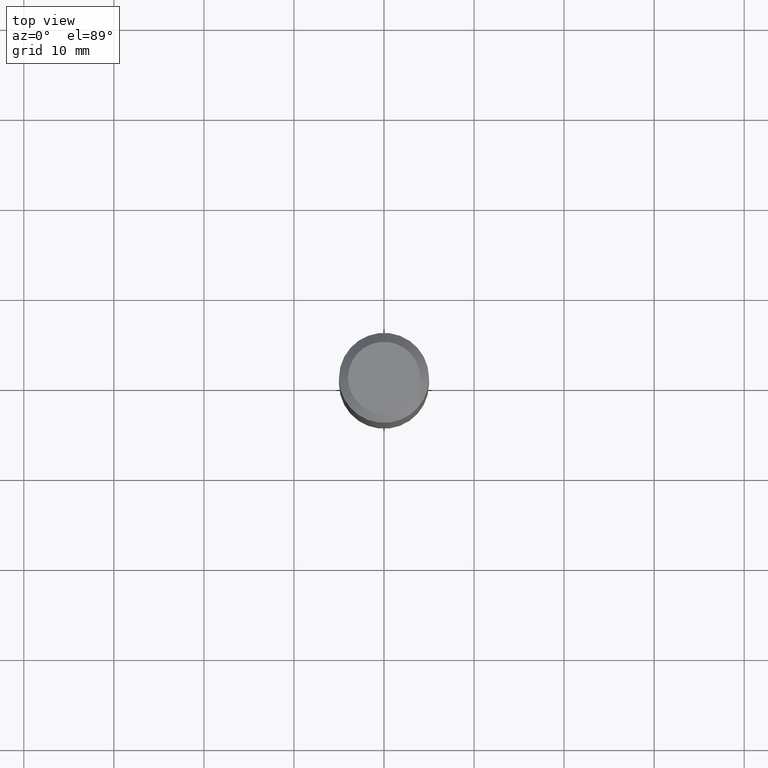
[diagram: clean part render]
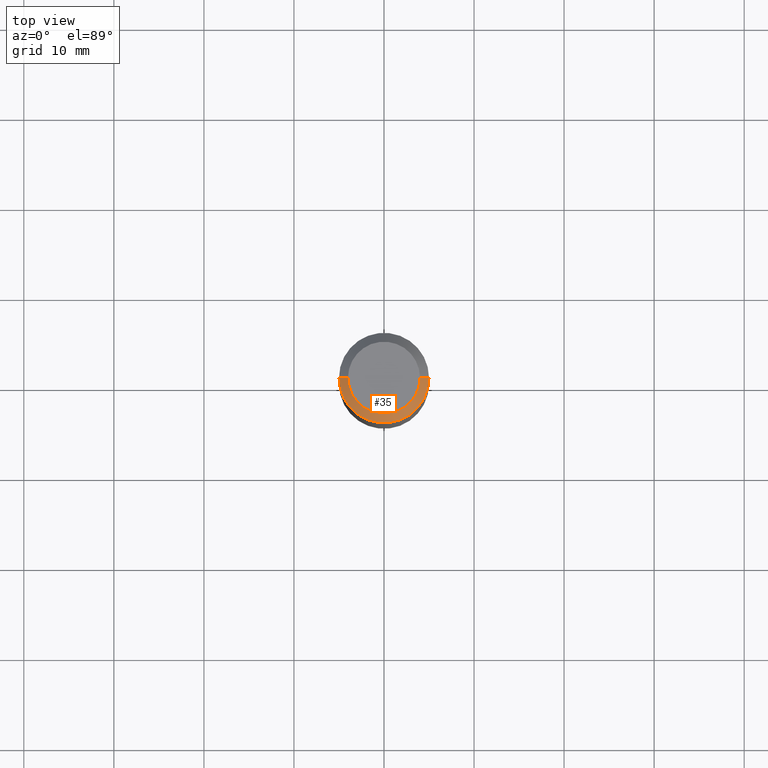
[diagram: same view with one face highlighted and labeled with its STEP entity id]
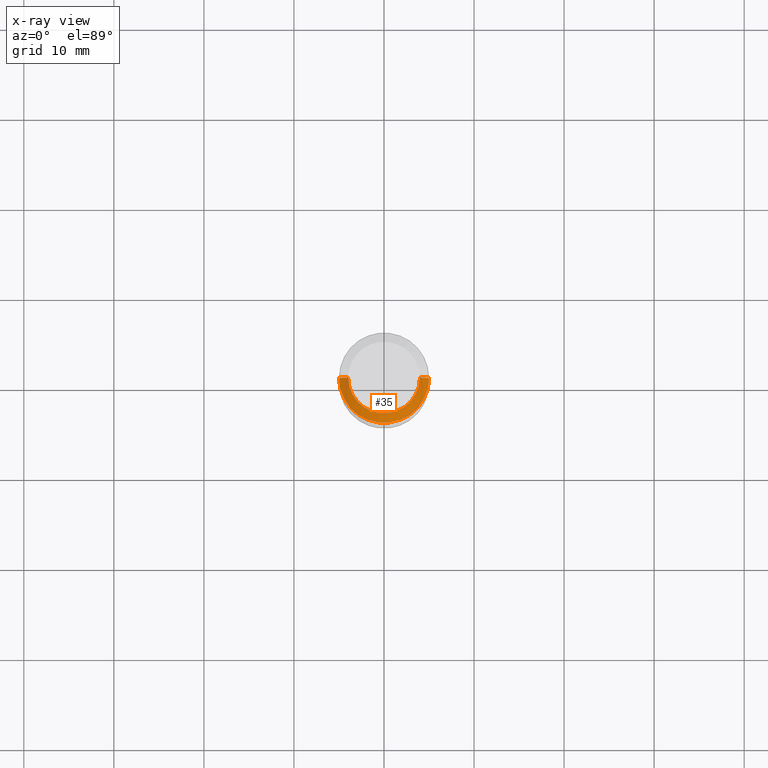
[diagram: x-ray of the same camera — body ghosted, the highlighted face saturated]
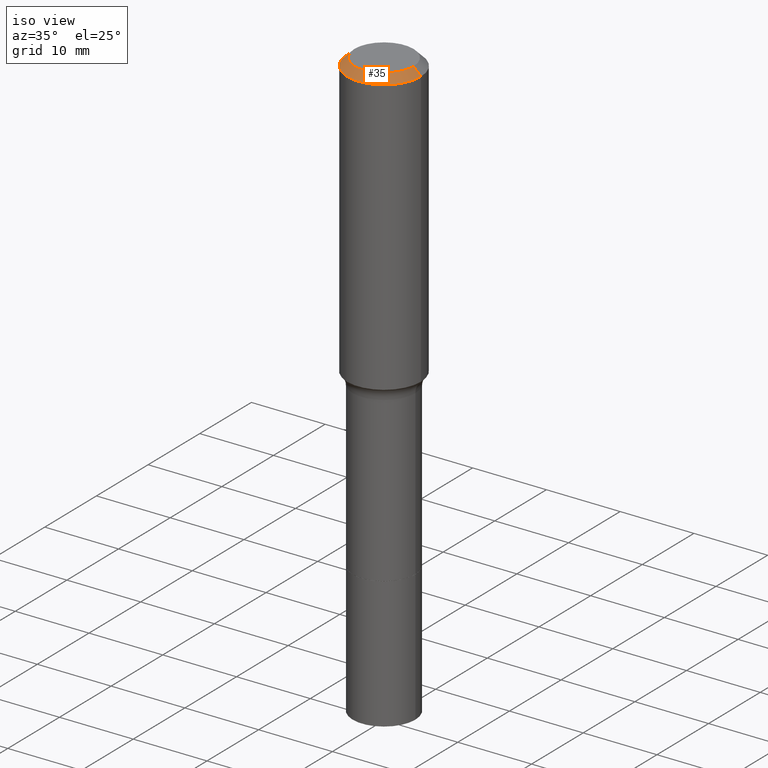
[diagram: same view with one face highlighted and labeled with its STEP entity id]
A machine part, top view. The second image highlights one B-rep face of the part: STEP entity #35.
The next image is the same camera in x-ray: the body ghosted, the highlighted face saturated — about 0% of this face is hidden behind the body in this view.
A second angle (iso view) of the same face is appended — the face is thin or edge-on in the first view.
In plain terms, the highlighted conical surface has half-angle 45 deg.
Its self-contained STEP definition (entity closure, byte-faithful):
#7 = VERTEX_POINT ( 'NONE', #44 ) ;
#9 = DIRECTION ( 'NONE',  ( -2.445468806185136597E-29, 3.491481338843145583E-15, 1.000000000000000000 ) ) ;
#15 = DIRECTION ( 'NONE',  ( 1.000000000000000000, -6.982962677686265922E-15, 4.876223630392693006E-29 ) ) ;
#35 = ADVANCED_FACE ( 'NONE', ( #353 ), #362, .T. ) ;
#39 = ORIENTED_EDGE ( 'NONE', *, *, #394, .T. ) ;
#44 = CARTESIAN_POINT ( 'NONE',  ( 0.1968500000000000250, -1.512055823412797189E-15, -0.03937000000000025896 ) ) ;
#94 = DIRECTION ( 'NONE',  ( 1.000000000000000000, -6.982962677686265922E-15, 0.000000000000000000 ) ) ;
#100 = ORIENTED_EDGE ( 'NONE', *, *, #135, .F. ) ;
#119 = CARTESIAN_POINT ( 'NONE',  ( 0.1968500000000000250, -1.487948651171581601E-15, -0.03937000000000025896 ) ) ;
#125 = AXIS2_PLACEMENT_3D ( 'NONE', #160, #323, #365 ) ;
#135 = EDGE_CURVE ( 'NONE', #201, #7, #486, .T. ) ;
#136 = VECTOR ( 'NONE', #267, 39.37007874015748143 ) ;
#146 = DIRECTION ( 'NONE',  ( -2.445468806185136597E-29, 3.491481338843145583E-15, 1.000000000000000000 ) ) ;
#160 = CARTESIAN_POINT ( 'NONE',  ( 9.627810689950945397E-31, -1.374596203102555315E-16, -0.03937000000000025896 ) ) ;
#168 = CARTESIAN_POINT ( 'NONE',  ( 0.1574800000000000089, -1.284169937930321189E-15, 3.855188123724205385E-18 ) ) ;
#179 = CARTESIAN_POINT ( 'NONE',  ( -0.1574800000000000089, 1.168406772637159618E-15, 3.855188123707939751E-18 ) ) ;
#183 = CIRCLE ( 'NONE', #438, 0.1968500000000000250 ) ;
#187 = EDGE_LOOP ( 'NONE', ( #100, #282, #39, #278 ) ) ;
#201 = VERTEX_POINT ( 'NONE', #168 ) ;
#234 = VECTOR ( 'NONE', #445, 39.37007874015748143 ) ;
#267 = DIRECTION ( 'NONE',  ( -0.7071067811865453523, 2.468850131082234184E-15, -0.7071067811865496822 ) ) ;
#276 = EDGE_CURVE ( 'NONE', #287, #201, #284, .T. ) ;
#277 = AXIS2_PLACEMENT_3D ( 'NONE', #291, #9, #15 ) ;
#278 = ORIENTED_EDGE ( 'NONE', *, *, #442, .T. ) ;
#282 = ORIENTED_EDGE ( 'NONE', *, *, #276, .F. ) ;
#284 = CIRCLE ( 'NONE', #277, 0.1574800000000000089 ) ;
#287 = VERTEX_POINT ( 'NONE', #179 ) ;
#291 = CARTESIAN_POINT ( 'NONE',  ( -9.427742298522567634E-47, 1.346031739168368355E-32, 3.855188123715870730E-18 ) ) ;
#304 = LINE ( 'NONE', #309, #136 ) ;
#309 = CARTESIAN_POINT ( 'NONE',  ( -0.1968500000000000250, 1.237136582792286225E-15, -0.03937000000000025896 ) ) ;
#323 = DIRECTION ( 'NONE',  ( 2.445468806185136597E-29, -3.491481338843145583E-15, -1.000000000000000000 ) ) ;
#353 = FACE_OUTER_BOUND ( 'NONE', #187, .T. ) ;
#362 = CONICAL_SURFACE ( 'NONE', #125, 0.1968500000000000250, 0.7853981633974452814 ) ;
#365 = DIRECTION ( 'NONE',  ( -1.000000000000000000, 6.982962677686265922E-15, 0.000000000000000000 ) ) ;
#394 = EDGE_CURVE ( 'NONE', #287, #500, #304, .T. ) ;
#438 = AXIS2_PLACEMENT_3D ( 'NONE', #501, #146, #94 ) ;
#442 = EDGE_CURVE ( 'NONE', #500, #7, #183, .T. ) ;
#445 = DIRECTION ( 'NONE',  ( 0.7071067811865453523, -7.319954787623248157E-15, -0.7071067811865496822 ) ) ;
#486 = LINE ( 'NONE', #119, #234 ) ;
#500 = VERTEX_POINT ( 'NONE', #511 ) ;
#501 = CARTESIAN_POINT ( 'NONE',  ( 9.627810689950945397E-31, -1.374596203102555315E-16, -0.03937000000000025896 ) ) ;
#511 = CARTESIAN_POINT ( 'NONE',  ( -0.1968500000000000250, -1.308536554751411971E-15, -0.03937000000000025896 ) ) ;